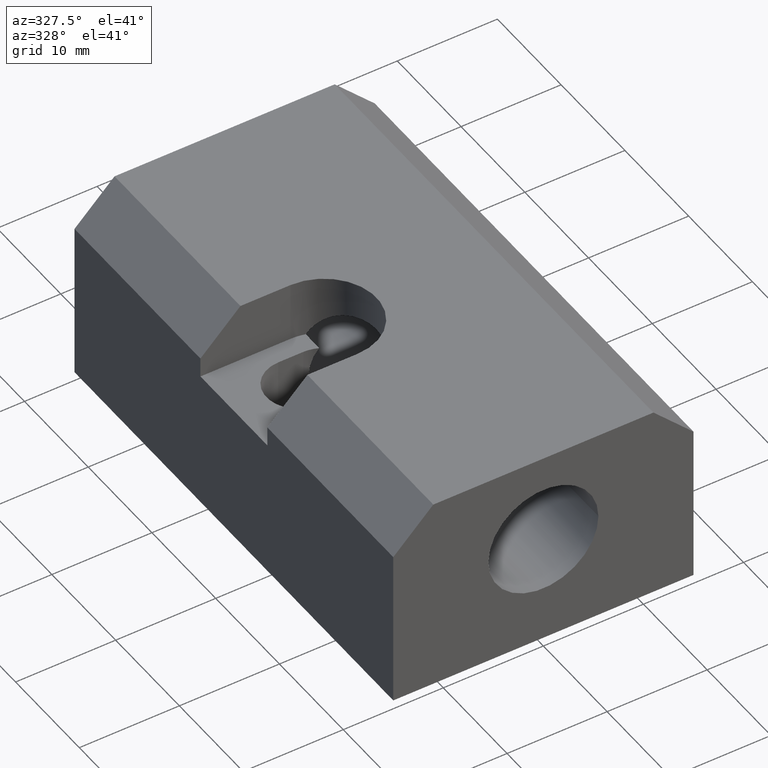
[diagram: clean part render]
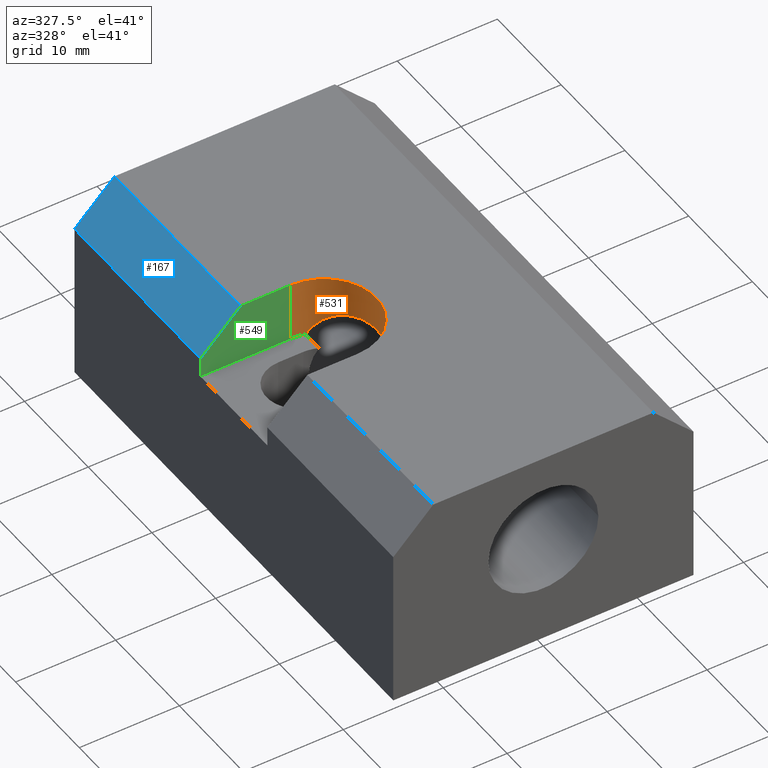
[diagram: same view with three faces highlighted in distinct colors, each labeled with its STEP entity id]
A machine part, auxiliary view with three faces highlighted in distinct colors.
Their STEP definitions:

[orange] entity #531 — the highlighted cylindrical surface (partial cylindrical patch) has radius 5.25 mm, axis along (0, -0, 1).
#94=CARTESIAN_POINT('',(-5.999999999976581,-19.750000516315183,19.999999490181750));
#95=VERTEX_POINT('',#94);
#102=CARTESIAN_POINT('',(-5.999999999975856,-30.250000516273747,19.999999219181262));
#103=VERTEX_POINT('',#102);
#104=CARTESIAN_POINT('',(-5.999999999975856,-25.000000516294467,19.999999354681506));
#105=DIRECTION('',(8.010470E-033,-0.000000025809570,1.000000000000000));
#106=DIRECTION('',(-1.0,-5.510130E-040,8.010470E-033));
#107=AXIS2_PLACEMENT_3D('',#104,#105,#106);
#108=CIRCLE('',#107,5.249999999979286);
#109=EDGE_CURVE('',#103,#95,#108,.T.);
#397=CARTESIAN_POINT('',(-4.609773437501850,-30.062585679708111,13.999997366537329));
#398=VERTEX_POINT('',#397);
#399=CARTESIAN_POINT('',(-4.609773437501850,-19.937415043165885,13.999997627863635));
#400=VERTEX_POINT('',#399);
#401=CARTESIAN_POINT('',(-4.609773437501850,-30.062585679708111,13.999997366537329));
#402=CARTESIAN_POINT('',(-4.513460181953690,-30.036137290510446,14.147991554555574));
#403=CARTESIAN_POINT('',(-4.220790235840020,-29.947418045118955,14.553468269196244));
#404=CARTESIAN_POINT('',(-3.712541596371437,-29.742296238767679,15.085618809378914));
#405=CARTESIAN_POINT('',(-3.114649202484515,-29.402108529464961,15.549017026104437));
#406=CARTESIAN_POINT('',(-2.483759828348276,-28.930618164272921,15.926564549909344));
#407=CARTESIAN_POINT('',(-1.767837856828265,-28.185364174737270,16.228236571129685));
#408=CARTESIAN_POINT('',(-1.150660020495671,-27.140082904808416,16.385668423296934));
#409=CARTESIAN_POINT('',(-0.785689032112060,-25.930406252972858,16.444779878449481));
#410=CARTESIAN_POINT('',(-0.707543327265157,-24.685416119282785,16.453911384761710));
#411=CARTESIAN_POINT('',(-0.918869546949551,-23.525267177270564,16.426312849805626));
#412=CARTESIAN_POINT('',(-1.378038843916933,-22.423870730114388,16.333463462370844));
#413=CARTESIAN_POINT('',(-2.045460668463257,-21.473597313919132,16.131383279137452));
#414=CARTESIAN_POINT('',(-2.944136195870328,-20.682598142708194,15.686867443042757));
#415=CARTESIAN_POINT('',(-3.739292116957159,-20.241241327239621,15.073474904552356));
#416=CARTESIAN_POINT('',(-4.283558660717254,-20.033197983366293,14.468522934388290));
#417=CARTESIAN_POINT('',(-4.523825036563288,-19.961017167324087,14.132065260907851));
#418=CARTESIAN_POINT('',(-4.609773437501850,-19.937415043165885,13.999997627863635));
#419=B_SPLINE_CURVE_WITH_KNOTS('',3,(#401,#402,#403,#404,#405,#406,#407,#408,#409,#410,#411,#412,#413,#414,#415,#416,#417,#418),.UNSPECIFIED.,.F.,.U.,(4,1,1,1,1,1,1,1,1,1,1,1,1,1,1,4),(0.0,0.535903650385525,1.520753748540064,2.277790965733574,3.013580933543508,4.130291299700574,5.480009836771406,6.648909124830340,7.900542887177067,9.195462676804930,10.159924569277472,11.474724584485887,12.695804728975558,13.949183433871301,14.728182024343361,15.206363714230307),.UNSPECIFIED.);
#420=EDGE_CURVE('',#398,#400,#419,.T.);
#480=CARTESIAN_POINT('',(-5.999999999975856,-30.250000361416284,13.999997361700238));
#481=VERTEX_POINT('',#480);
#482=CARTESIAN_POINT('',(-5.999999999975856,-30.250000516273747,19.999999219181262));
#483=DIRECTION('',(0.0,0.000000025809569,-1.000000000000000));
#484=VECTOR('',#483,6.000001857481026);
#485=LINE('',#482,#484);
#486=EDGE_CURVE('',#103,#481,#485,.T.);
#499=CARTESIAN_POINT('',(-5.999999999975856,-25.000000516294463,19.999999354681506));
#500=DIRECTION('',(8.010470E-033,-0.000000025809570,1.000000000000000));
#501=DIRECTION('',(-1.0,-5.510130E-040,8.010470E-033));
#502=AXIS2_PLACEMENT_3D('',#499,#500,#501);
#503=CYLINDRICAL_SURFACE('',#502,5.249999999979286);
#504=ORIENTED_EDGE('',*,*,#109,.T.);
#505=CARTESIAN_POINT('',(-5.999999999976581,-19.750000361457722,13.999997632700740));
#506=VERTEX_POINT('',#505);
#507=CARTESIAN_POINT('',(-5.999999999976581,-19.750000516315183,19.999999490181750));
#508=DIRECTION('',(0.0,0.000000025809569,-1.000000000000000));
#509=VECTOR('',#508,6.000001857481012);
#510=LINE('',#507,#509);
#511=EDGE_CURVE('',#95,#506,#510,.T.);
#512=ORIENTED_EDGE('',*,*,#511,.T.);
#513=CARTESIAN_POINT('',(-5.999999999975856,-25.000000361437003,13.999997497200480));
#514=DIRECTION('',(8.010470E-033,-0.000000025809570,1.000000000000000));
#515=DIRECTION('',(-1.0,-9.183550E-040,8.010470E-033));
#516=AXIS2_PLACEMENT_3D('',#513,#514,#515);
#517=CIRCLE('',#516,5.249999999979286);
#518=EDGE_CURVE('',#400,#506,#517,.T.);
#519=ORIENTED_EDGE('',*,*,#518,.F.);
#520=ORIENTED_EDGE('',*,*,#420,.F.);
#521=CARTESIAN_POINT('',(-5.999999999975856,-25.000000361437003,13.999997497200480));
#522=DIRECTION('',(8.010470E-033,-0.000000025809570,1.000000000000000));
#523=DIRECTION('',(-1.0,-9.183550E-040,8.010470E-033));
#524=AXIS2_PLACEMENT_3D('',#521,#522,#523);
#525=CIRCLE('',#524,5.249999999979286);
#526=EDGE_CURVE('',#481,#398,#525,.T.);
#527=ORIENTED_EDGE('',*,*,#526,.F.);
#528=ORIENTED_EDGE('',*,*,#486,.F.);
#529=EDGE_LOOP('',(#504,#512,#519,#520,#527,#528));
#530=FACE_OUTER_BOUND('',#529,.T.);
#531=ADVANCED_FACE('',(#530),#503,.F.);

[blue] entity #167 — the highlighted planar face has unit normal (-0.7071, -0, 0.7071).
#78=CARTESIAN_POINT('',(-10.999999999956572,-0.000000516189850,19.999999999920746));
#79=VERTEX_POINT('',#78);
#86=CARTESIAN_POINT('',(-10.999999999956572,-19.750000516315179,19.999999490181750));
#87=VERTEX_POINT('',#86);
#88=CARTESIAN_POINT('',(-10.999999999956572,-0.000000516189850,19.999999999920746));
#89=DIRECTION('',(0.0,-1.000000000000000,-0.000000025809569));
#90=VECTOR('',#89,19.750000000125336);
#91=LINE('',#88,#90);
#92=EDGE_CURVE('',#79,#87,#91,.T.);
#137=CARTESIAN_POINT('',(-10.999999999956572,-0.000000516189850,19.999999999920746));
#138=DIRECTION('',(-0.707106781186628,-0.000000018250122,0.707106781186467));
#139=DIRECTION('',(-0.707106781186467,0.000000018249698,-0.707106781186628));
#140=AXIS2_PLACEMENT_3D('',#137,#138,#139);
#141=PLANE('',#140);
#142=CARTESIAN_POINT('',(-14.999999999940201,-0.000000412953966,15.999999999936193));
#143=VERTEX_POINT('',#142);
#144=CARTESIAN_POINT('',(-10.999999999956572,-0.000000516189850,19.999999999920746));
#145=DIRECTION('',(-0.707106781186467,0.000000018249698,-0.707106781186628));
#146=VECTOR('',#145,5.656854249469875);
#147=LINE('',#144,#146);
#148=EDGE_CURVE('',#79,#143,#147,.T.);
#149=ORIENTED_EDGE('',*,*,#148,.T.);
#150=CARTESIAN_POINT('',(-14.999999999940201,-19.750000413076904,15.999999490197197));
#151=VERTEX_POINT('',#150);
#152=CARTESIAN_POINT('',(-14.999999999940201,-0.000000412953966,15.999999999936193));
#153=DIRECTION('',(0.0,-1.000000000000000,-0.000000025809570));
#154=VECTOR('',#153,19.750000000122945);
#155=LINE('',#152,#154);
#156=EDGE_CURVE('',#143,#151,#155,.T.);
#157=ORIENTED_EDGE('',*,*,#156,.T.);
#158=CARTESIAN_POINT('',(-10.999999999956572,-19.750000516315179,19.999999490181750));
#159=DIRECTION('',(-0.707106781186466,0.000000018250121,-0.707106781186629));
#160=VECTOR('',#159,5.656854249469882);
#161=LINE('',#158,#160);
#162=EDGE_CURVE('',#87,#151,#161,.T.);
#163=ORIENTED_EDGE('',*,*,#162,.F.);
#164=ORIENTED_EDGE('',*,*,#92,.F.);
#165=EDGE_LOOP('',(#149,#157,#163,#164));
#166=FACE_OUTER_BOUND('',#165,.T.);
#167=ADVANCED_FACE('',(#166),#141,.T.);

[green] entity #549 — the highlighted planar face has unit normal (0, -1, -0).
#86=CARTESIAN_POINT('',(-10.999999999956572,-19.750000516315179,19.999999490181750));
#87=VERTEX_POINT('',#86);
#94=CARTESIAN_POINT('',(-5.999999999976581,-19.750000516315183,19.999999490181750));
#95=VERTEX_POINT('',#94);
#96=CARTESIAN_POINT('',(-5.999999999976581,-19.750000516315183,19.999999490181750));
#97=DIRECTION('',(-1.0,0.0,0.0));
#98=VECTOR('',#97,4.999999999979991);
#99=LINE('',#96,#98);
#100=EDGE_CURVE('',#95,#87,#99,.T.);
#150=CARTESIAN_POINT('',(-14.999999999940201,-19.750000413076904,15.999999490197197));
#151=VERTEX_POINT('',#150);
#158=CARTESIAN_POINT('',(-10.999999999956572,-19.750000516315179,19.999999490181750));
#159=DIRECTION('',(-0.707106781186466,0.000000018250121,-0.707106781186629));
#160=VECTOR('',#159,5.656854249469882);
#161=LINE('',#158,#160);
#162=EDGE_CURVE('',#87,#151,#161,.T.);
#235=CARTESIAN_POINT('',(-14.999999999940201,-19.750000361457722,13.999997632700712));
#236=VERTEX_POINT('',#235);
#243=CARTESIAN_POINT('',(-14.999999999940201,-19.750000413076908,15.999999490197197));
#244=DIRECTION('',(0.0,0.000000025809569,-1.000000000000000));
#245=VECTOR('',#244,2.000001857496486);
#246=LINE('',#243,#245);
#247=EDGE_CURVE('',#151,#236,#246,.T.);
#505=CARTESIAN_POINT('',(-5.999999999976581,-19.750000361457722,13.999997632700740));
#506=VERTEX_POINT('',#505);
#507=CARTESIAN_POINT('',(-5.999999999976581,-19.750000516315183,19.999999490181750));
#508=DIRECTION('',(0.0,0.000000025809569,-1.000000000000000));
#509=VECTOR('',#508,6.000001857481012);
#510=LINE('',#507,#509);
#511=EDGE_CURVE('',#95,#506,#510,.T.);
#532=CARTESIAN_POINT('',(-5.999999999976581,-19.750000516315183,19.999999490181750));
#533=DIRECTION('',(0.0,-1.000000000000000,-0.000000025809569));
#534=DIRECTION('',(-1.0,0.0,0.0));
#535=AXIS2_PLACEMENT_3D('',#532,#533,#534);
#536=PLANE('',#535);
#537=ORIENTED_EDGE('',*,*,#100,.T.);
#538=ORIENTED_EDGE('',*,*,#162,.T.);
#539=ORIENTED_EDGE('',*,*,#247,.T.);
#540=CARTESIAN_POINT('',(-5.999999999976581,-19.750000361457722,13.999997632700742));
#541=DIRECTION('',(-1.0,0.0,0.0));
#542=VECTOR('',#541,8.999999999963620);
#543=LINE('',#540,#542);
#544=EDGE_CURVE('',#506,#236,#543,.T.);
#545=ORIENTED_EDGE('',*,*,#544,.F.);
#546=ORIENTED_EDGE('',*,*,#511,.F.);
#547=EDGE_LOOP('',(#537,#538,#539,#545,#546));
#548=FACE_OUTER_BOUND('',#547,.T.);
#549=ADVANCED_FACE('',(#548),#536,.T.);